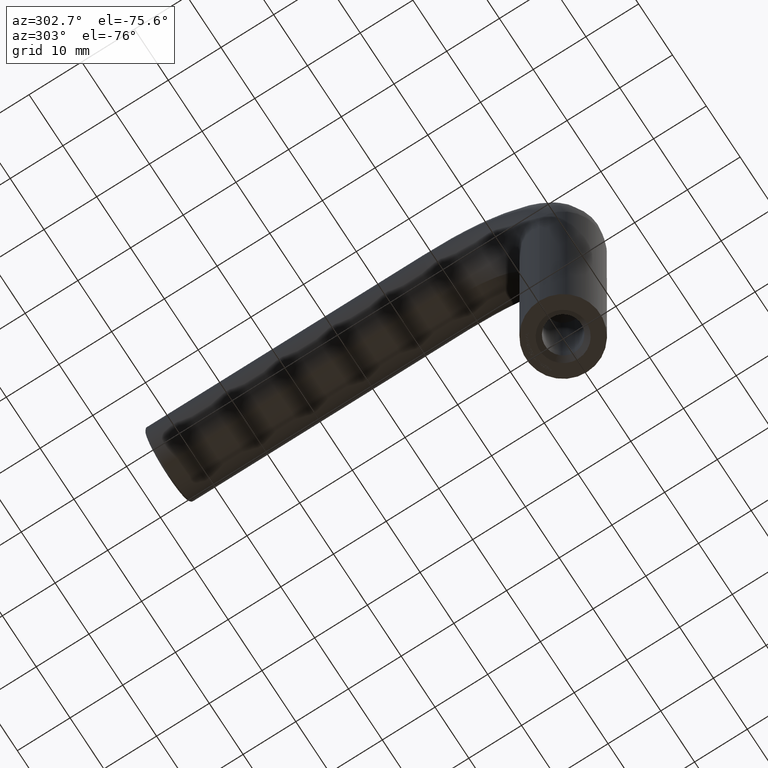
[diagram: clean part render]
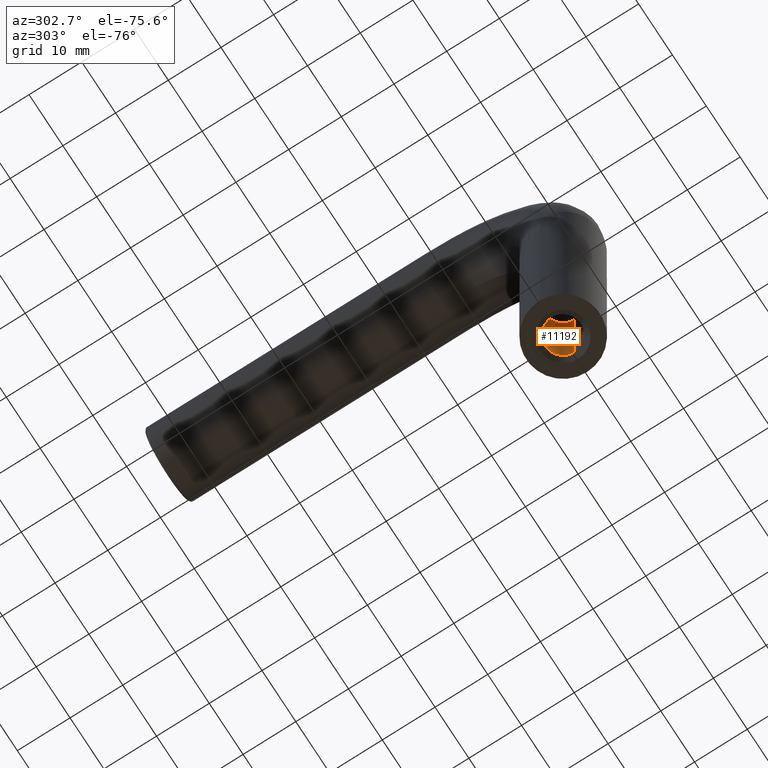
[diagram: same view with one face highlighted and labeled with its STEP entity id]
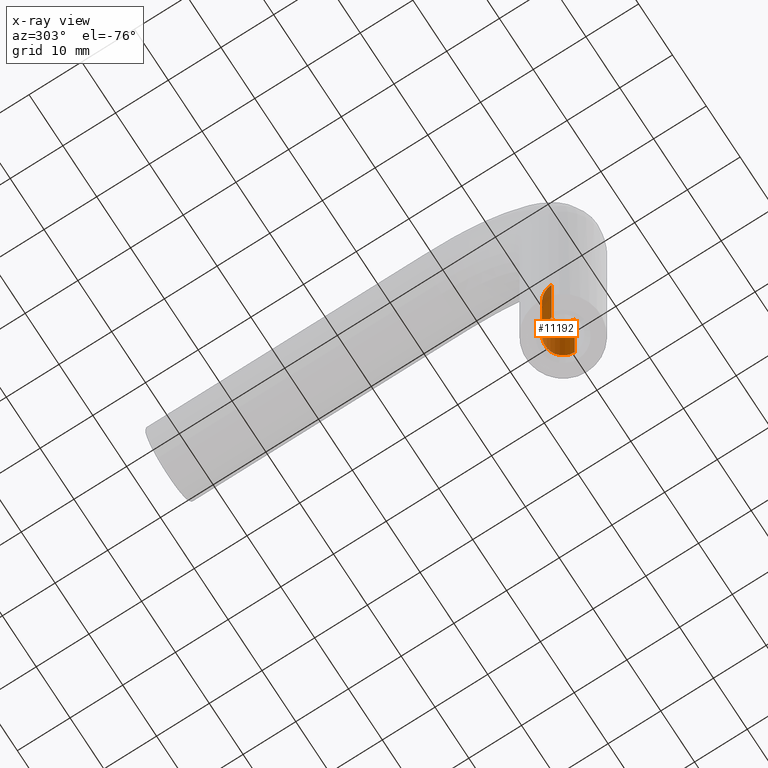
[diagram: x-ray of the same camera — body ghosted, the highlighted face saturated]
A machine part, auxiliary view. The second image highlights one B-rep face of the part: STEP entity #11192.
The next image is the same camera in x-ray: the body ghosted, the highlighted face saturated — about 10% of this face is hidden behind the body in this view.
In plain terms, the highlighted cylindrical surface (edge-blend (fillet) strip) has radius 3.4 mm, axis along (-0, -0, -1).
Its self-contained STEP definition (entity closure, byte-faithful):
#31 = ORIENTED_EDGE ( 'NONE', *, *, #1629, .T. ) ;
#308 = VERTEX_POINT ( 'NONE', #6143 ) ;
#662 = CARTESIAN_POINT ( 'NONE',  ( 0.000000000000000000, 0.000000000000000000, 22.00000000000000000 ) ) ;
#1504 = VERTEX_POINT ( 'NONE', #6950 ) ;
#1552 = ORIENTED_EDGE ( 'NONE', *, *, #11719, .T. ) ;
#1629 = EDGE_CURVE ( 'NONE', #1504, #308, #6681, .T. ) ;
#2210 = CARTESIAN_POINT ( 'NONE',  ( 3.399999999999994582, 4.163799117100994643E-16, 22.00000000000000000 ) ) ;
#2306 = DIRECTION ( 'NONE',  ( 0.000000000000000000, 0.000000000000000000, -1.000000000000000000 ) ) ;
#2882 = EDGE_LOOP ( 'NONE', ( #3968, #8969, #31, #1552 ) ) ;
#2987 = DIRECTION ( 'NONE',  ( -0.000000000000000000, -0.000000000000000000, -1.000000000000000000 ) ) ;
#3968 = ORIENTED_EDGE ( 'NONE', *, *, #4238, .F. ) ;
#4116 = AXIS2_PLACEMENT_3D ( 'NONE', #662, #12109, #10212 ) ;
#4238 = EDGE_CURVE ( 'NONE', #12003, #11480, #9484, .T. ) ;
#4643 = CARTESIAN_POINT ( 'NONE',  ( 3.399999999999992362, 4.163799117100991685E-16, 0.9999999999999935607 ) ) ;
#4651 = CYLINDRICAL_SURFACE ( 'NONE', #5487, 3.399999999999992362 ) ;
#4880 = DIRECTION ( 'NONE',  ( -1.000000000000000000, 0.000000000000000000, 0.000000000000000000 ) ) ;
#5487 = AXIS2_PLACEMENT_3D ( 'NONE', #10555, #2987, #4880 ) ;
#6143 = CARTESIAN_POINT ( 'NONE',  ( -3.399999999999992362, 0.000000000000000000, 0.9999999999999935607 ) ) ;
#6520 = DIRECTION ( 'NONE',  ( -0.000000000000000000, -0.000000000000000000, -1.000000000000000000 ) ) ;
#6647 = VECTOR ( 'NONE', #6520, 1000.000000000000000 ) ;
#6681 = LINE ( 'NONE', #8173, #10230 ) ;
#6950 = CARTESIAN_POINT ( 'NONE',  ( -3.399999999999994582, 0.000000000000000000, 22.00000000000000000 ) ) ;
#7531 = CARTESIAN_POINT ( 'NONE',  ( 3.399999999999992362, 4.163799117100991685E-16, 0.000000000000000000 ) ) ;
#7829 = EDGE_CURVE ( 'NONE', #1504, #12003, #9134, .T. ) ;
#8173 = CARTESIAN_POINT ( 'NONE',  ( -3.399999999999992362, 0.000000000000000000, 0.000000000000000000 ) ) ;
#8969 = ORIENTED_EDGE ( 'NONE', *, *, #7829, .F. ) ;
#9134 = CIRCLE ( 'NONE', #4116, 3.399999999999994582 ) ;
#9484 = LINE ( 'NONE', #7531, #6647 ) ;
#9555 = FACE_OUTER_BOUND ( 'NONE', #2882, .T. ) ;
#9866 = DIRECTION ( 'NONE',  ( 1.000000000000000000, 0.000000000000000000, 0.000000000000000000 ) ) ;
#10212 = DIRECTION ( 'NONE',  ( -1.000000000000000000, 0.000000000000000000, 0.000000000000000000 ) ) ;
#10230 = VECTOR ( 'NONE', #11541, 1000.000000000000000 ) ;
#10555 = CARTESIAN_POINT ( 'NONE',  ( 0.000000000000000000, 0.000000000000000000, 0.000000000000000000 ) ) ;
#11192 = ADVANCED_FACE ( 'NONE', ( #9555 ), #4651, .F. ) ;
#11319 = CIRCLE ( 'NONE', #11835, 3.399999999999992362 ) ;
#11480 = VERTEX_POINT ( 'NONE', #4643 ) ;
#11541 = DIRECTION ( 'NONE',  ( -0.000000000000000000, -0.000000000000000000, -1.000000000000000000 ) ) ;
#11719 = EDGE_CURVE ( 'NONE', #308, #11480, #11319, .T. ) ;
#11805 = CARTESIAN_POINT ( 'NONE',  ( 0.000000000000000000, 0.000000000000000000, 0.9999999999999935607 ) ) ;
#11835 = AXIS2_PLACEMENT_3D ( 'NONE', #11805, #2306, #9866 ) ;
#12003 = VERTEX_POINT ( 'NONE', #2210 ) ;
#12109 = DIRECTION ( 'NONE',  ( -0.000000000000000000, -0.000000000000000000, -1.000000000000000000 ) ) ;